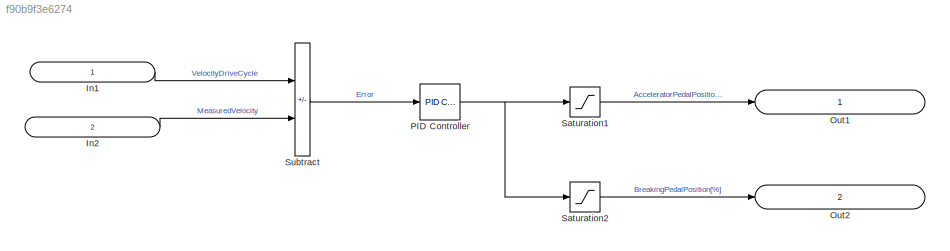
MODEL slx_f90b9f3e6274
KIND model
CONFIG AbsTol = auto
CONFIG EnableMultiTasking = off
CONFIG FixedStep = auto
CONFIG MaxStep = auto
CONFIG MinStep = auto
CONFIG RelTol = 1e-3
CONFIG SampleTimeConstraint = Unconstrained
CONFIG Solver = VariableStepAuto
CONFIG SolverName = VariableStepAuto
CONFIG StartTime = 0.0
CONFIG StopTime = 10.0
BLOCK [Inport] In1
  IconDisplay = Port number and signal name
BLOCK [Inport] In2
  IconDisplay = Port number and signal name
  Port = 2
BLOCK [Outport] Out1
  IconDisplay = Port number and signal name
BLOCK [Outport] Out2
  IconDisplay = Port number and signal name
  Port = 2
BLOCK [Reference] PID Controller  REF=simulink/Continuous/PID Controller
  Ports = [1, 1]
  SourceBlock = simulink/Continuous/PID Controller
  SourceProductBaseCode = SL
  SourceType = PID 1dof
BLOCK [Saturate] Saturation1
  LowerLimit = 0
  UpperLimit = 100
  ZeroCross = off
BLOCK [Saturate] Saturation2
  LowerLimit = -100
  UpperLimit = 0
  ZeroCross = off
BLOCK [Sum] Subtract
  IconShape = rectangular
  Inputs = +-
  Ports = [2, 1]
LINE In1:1 -> Subtract:1
LINE In2:1 -> Subtract:2
NET PID Controller:1 -> Saturation1:1, Saturation2:1
LINE Saturation1:1 -> Out1:1
LINE Saturation2:1 -> Out2:1
LINE Subtract:1 -> PID Controller:1
note: NET lines group one-source signal fan-out (src -> all destinations, sorted); 1:1 wires keep LINE
